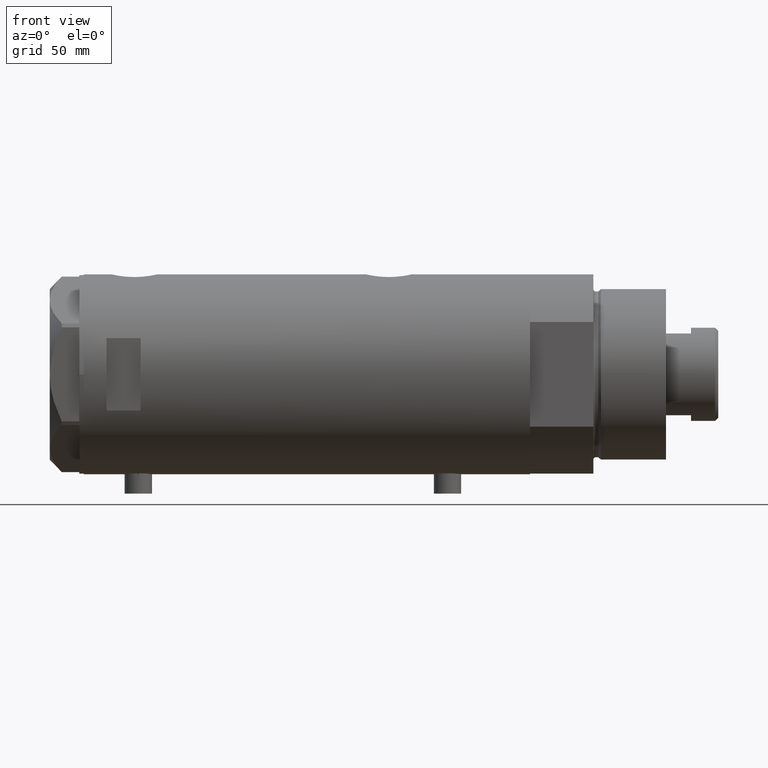
[diagram: clean part render]
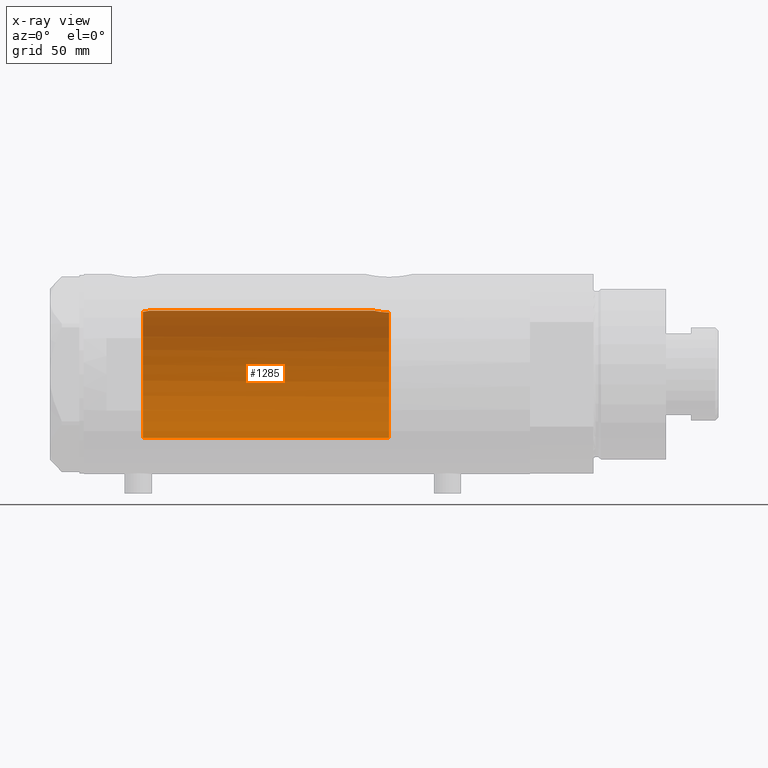
[diagram: x-ray — body ghosted, one internal face saturated and labeled with its STEP entity id]
A machine part, front view, then the same camera in x-ray: the body is ghosted and one INTERNAL B-rep face — a face not visible from any outside direction — is saturated and labeled: STEP entity #1285.
In plain terms, the highlighted cylindrical surface (partial cylindrical patch) has radius 28 mm, axis along (1, 0, -0).
Its self-contained STEP definition (entity closure, byte-faithful):
#28 = CIRCLE ( 'NONE', #916, 28.00000000000000000 ) ;
#29 = CARTESIAN_POINT ( 'NONE',  ( -28.00000000000000000, 0.000000000000000000, 72.20000000000001705 ) ) ;
#225 = ORIENTED_EDGE ( 'NONE', *, *, #4352, .F. ) ;
#237 = CARTESIAN_POINT ( 'NONE',  ( 27.55311958554909424, 4.984468698502475981, -31.79897075987406296 ) ) ;
#340 = VECTOR ( 'NONE', #2599, 1000.000000000000000 ) ;
#368 = EDGE_CURVE ( 'NONE', #3814, #4515, #3677, .T. ) ;
#536 = EDGE_CURVE ( 'NONE', #4529, #545, #28, .T. ) ;
#537 = CARTESIAN_POINT ( 'NONE',  ( 27.46622653369042411, 5.441176343402230664, 72.20000000000001705 ) ) ;
#545 = VERTEX_POINT ( 'NONE', #2009 ) ;
#579 = VERTEX_POINT ( 'NONE', #29 ) ;
#599 = ORIENTED_EDGE ( 'NONE', *, *, #368, .F. ) ;
#605 = CARTESIAN_POINT ( 'NONE',  ( 0.000000000000000000, 0.000000000000000000, -36.20000000000000995 ) ) ;
#621 = CARTESIAN_POINT ( 'NONE',  ( 27.94984428957576128, 1.729919005741101357, -29.73624844305086512 ) ) ;
#693 = CARTESIAN_POINT ( 'NONE',  ( 27.87926027245440608, 2.609415915507860895, 69.85365920364245085 ) ) ;
#772 = CARTESIAN_POINT ( 'NONE',  ( 27.59012538417911031, 4.776664836238046163, 71.36675298569846859 ) ) ;
#830 = DIRECTION ( 'NONE',  ( 1.000000000000000000, 0.000000000000000000, 0.000000000000000000 ) ) ;
#916 = AXIS2_PLACEMENT_3D ( 'NONE', #605, #1711, #3789 ) ;
#974 = CARTESIAN_POINT ( 'NONE',  ( 28.00000000000000000, 8.058211040487717449E-16, -29.52000000000000313 ) ) ;
#1013 = CARTESIAN_POINT ( 'NONE',  ( 27.36295003163000672, 5.941130795499232065, -33.23794896005177435 ) ) ;
#1116 = LINE ( 'NONE', #3151, #2992 ) ;
#1195 = EDGE_LOOP ( 'NONE', ( #225, #599, #3533, #2301, #4174, #3521 ) ) ;
#1197 = CARTESIAN_POINT ( 'NONE',  ( 27.85549123290575579, 2.850830541327404877, 69.96370468682907529 ) ) ;
#1267 = CARTESIAN_POINT ( 'NONE',  ( 27.98989376185446432, 0.8673308354119273478, -29.56259295538816545 ) ) ;
#1285 = ADVANCED_FACE ( 'NONE', ( #3585 ), #3237, .F. ) ;
#1334 = CARTESIAN_POINT ( 'NONE',  ( 28.00000000000000000, 0.000000000000000000, 69.32000000000000739 ) ) ;
#1357 = CARTESIAN_POINT ( 'NONE',  ( 27.70785054350542964, 4.050475470458777316, -30.89631279652927276 ) ) ;
#1463 = CARTESIAN_POINT ( 'NONE',  ( 28.00000000000000000, 0.000000000000000000, 69.32000000000000739 ) ) ;
#1495 = CARTESIAN_POINT ( 'NONE',  ( 0.000000000000000000, 0.000000000000000000, 72.20000000000001705 ) ) ;
#1641 = CARTESIAN_POINT ( 'NONE',  ( 27.50226589723266102, 5.257822516958276182, -32.13779315141981385 ) ) ;
#1665 = CARTESIAN_POINT ( 'NONE',  ( 27.52730847012277948, 5.126288527110444804, 71.76623399461912811 ) ) ;
#1683 = CARTESIAN_POINT ( 'NONE',  ( 27.77951318121831292, 3.511620812961478766, -30.53115835401436584 ) ) ;
#1711 = DIRECTION ( 'NONE',  ( 0.000000000000000000, 0.000000000000000000, -1.000000000000000000 ) ) ;
#1724 = CARTESIAN_POINT ( 'NONE',  ( 27.21712162367727927, 6.574850051620749092, -35.76016190408788731 ) ) ;
#1911 = B_SPLINE_CURVE_WITH_KNOTS ( 'NONE', 3,
 ( #974, #2369, #1267, #621, #3093, #4492, #3013, #2026, #1683, #1357, #3375, #2327, #237, #1641, #2757, #4160, #1013, #3033, #4434, #4180, #2122, #1724, #3480, #3118 ),
 .UNSPECIFIED., .F., .F.,
 ( 4, 2, 2, 2, 2, 2, 2, 2, 2, 2, 2, 4 ),
 ( 0.02064447638625019690, 0.02194711032043805340, 0.02324974425462590644, 0.02390106122171983469, 0.02455237818881376294, 0.02585501212300162291, 0.02650632909009555116, 0.02715764605718948288, 0.02846027999137732550, 0.02976291392556516466, 0.03041423089265908597, 0.03106554785975300728 ),
 .UNSPECIFIED. ) ;
#1953 = CIRCLE ( 'NONE', #3473, 28.00000000000000000 ) ;
#1958 = EDGE_CURVE ( 'NONE', #3814, #579, #1953, .T. ) ;
#2009 = CARTESIAN_POINT ( 'NONE',  ( 27.21605408577812568, 6.579240077698946365, -36.20000000000000995 ) ) ;
#2026 = CARTESIAN_POINT ( 'NONE',  ( 27.80267334785860101, 3.323944738624912798, -30.41709962017577951 ) ) ;
#2122 = CARTESIAN_POINT ( 'NONE',  ( 27.22604017942136423, 6.537820648187911310, -35.32472952793341392 ) ) ;
#2176 = CARTESIAN_POINT ( 'NONE',  ( 27.98435453724556510, 1.072101232728050579, 69.38566097371688102 ) ) ;
#2301 = ORIENTED_EDGE ( 'NONE', *, *, #3244, .T. ) ;
#2327 = CARTESIAN_POINT ( 'NONE',  ( 27.57921322802619457, 4.838471943606465153, -31.63541026849052429 ) ) ;
#2369 = CARTESIAN_POINT ( 'NONE',  ( 28.00000000000000355, 0.4344375524774767294, -29.51999999999999957 ) ) ;
#2437 = CARTESIAN_POINT ( 'NONE',  ( 27.62184089756353700, 4.590621453796800644, 71.17847296394721468 ) ) ;
#2505 = CARTESIAN_POINT ( 'NONE',  ( 0.000000000000000000, 0.000000000000000000, 98.20000000000000284 ) ) ;
#2513 = DIRECTION ( 'NONE',  ( -0.000000000000000000, -0.000000000000000000, -1.000000000000000000 ) ) ;
#2599 = DIRECTION ( 'NONE',  ( -0.000000000000000000, -0.000000000000000000, -1.000000000000000000 ) ) ;
#2606 = AXIS2_PLACEMENT_3D ( 'NONE', #2505, #4227, #3528 ) ;
#2757 = CARTESIAN_POINT ( 'NONE',  ( 27.47751794615729537, 5.385218554237049204, -32.31285718566402210 ) ) ;
#2907 = CARTESIAN_POINT ( 'NONE',  ( -28.00000000000000000, 0.000000000000000000, 98.20000000000000284 ) ) ;
#2992 = VECTOR ( 'NONE', #2513, 1000.000000000000000 ) ;
#3013 = CARTESIAN_POINT ( 'NONE',  ( 27.84585502960274184, 2.940342086136633171, -30.20946914370765768 ) ) ;
#3033 = CARTESIAN_POINT ( 'NONE',  ( 27.28989504668421517, 6.268149480003700091, -34.05093353430704184 ) ) ;
#3051 = CARTESIAN_POINT ( 'NONE',  ( -28.00000000000000000, 0.000000000000000000, -36.20000000000000995 ) ) ;
#3089 = VERTEX_POINT ( 'NONE', #4135 ) ;
#3093 = CARTESIAN_POINT ( 'NONE',  ( 27.92057377942991891, 2.145335874642057217, -29.86449057456583489 ) ) ;
#3118 = CARTESIAN_POINT ( 'NONE',  ( 27.21605408577812568, 6.579240077698946365, -36.20000000000000995 ) ) ;
#3134 = EDGE_CURVE ( 'NONE', #3089, #545, #1911, .T. ) ;
#3151 = CARTESIAN_POINT ( 'NONE',  ( 28.00000000000000000, 3.429011037612589276E-15, 98.20000000000000284 ) ) ;
#3191 = CARTESIAN_POINT ( 'NONE',  ( 27.93969014165221765, 1.855286977351521704, 69.58124112405666040 ) ) ;
#3237 = CYLINDRICAL_SURFACE ( 'NONE', #2606, 28.00000000000000000 ) ;
#3244 = EDGE_CURVE ( 'NONE', #579, #4529, #3607, .T. ) ;
#3375 = CARTESIAN_POINT ( 'NONE',  ( 27.65669575048418238, 4.382057994727794004, -31.17233761202032838 ) ) ;
#3473 = AXIS2_PLACEMENT_3D ( 'NONE', #1495, #3961, #830 ) ;
#3480 = CARTESIAN_POINT ( 'NONE',  ( 27.21525044627862755, 6.582564457995944807, -35.98128103916471332 ) ) ;
#3483 = CARTESIAN_POINT ( 'NONE',  ( 27.92131942247208798, 2.112374604004425116, 69.66259974202708349 ) ) ;
#3521 = ORIENTED_EDGE ( 'NONE', *, *, #3134, .F. ) ;
#3528 = DIRECTION ( 'NONE',  ( -1.000000000000000000, 0.000000000000000000, 0.000000000000000000 ) ) ;
#3533 = ORIENTED_EDGE ( 'NONE', *, *, #1958, .T. ) ;
#3562 = CARTESIAN_POINT ( 'NONE',  ( 28.00000000000000355, 0.5407212781083803321, 69.32000000000003581 ) ) ;
#3585 = FACE_OUTER_BOUND ( 'NONE', #1195, .T. ) ;
#3607 = LINE ( 'NONE', #2907, #340 ) ;
#3677 = B_SPLINE_CURVE_WITH_KNOTS ( 'NONE', 3,
 ( #537, #3736, #1665, #772, #2437, #3906, #4551, #1197, #693, #3483, #3191, #2176, #3562, #1463 ),
 .UNSPECIFIED., .F., .F.,
 ( 4, 2, 2, 2, 2, 2, 4 ),
 ( 0.03488855882532450325, 0.03568791961119571754, 0.03648728039706693183, 0.03808600196880933264, 0.03888536275468051917, 0.03968472354055171264, 0.04128344511229409958 ),
 .UNSPECIFIED. ) ;
#3735 = CARTESIAN_POINT ( 'NONE',  ( 27.46622653369042411, 5.441176343402230664, 72.20000000000001705 ) ) ;
#3736 = CARTESIAN_POINT ( 'NONE',  ( 27.49602064413222635, 5.290780227724656726, 71.97882924682045314 ) ) ;
#3789 = DIRECTION ( 'NONE',  ( -1.000000000000000000, 0.000000000000000000, 0.000000000000000000 ) ) ;
#3814 = VERTEX_POINT ( 'NONE', #3735 ) ;
#3906 = CARTESIAN_POINT ( 'NONE',  ( 27.71586615897684780, 3.998795151939225523, 70.64767395625744939 ) ) ;
#3961 = DIRECTION ( 'NONE',  ( 0.000000000000000000, 0.000000000000000000, 1.000000000000000000 ) ) ;
#4135 = CARTESIAN_POINT ( 'NONE',  ( 28.00000000000000000, 8.058211040487717449E-16, -29.52000000000000313 ) ) ;
#4160 = CARTESIAN_POINT ( 'NONE',  ( 27.40633791352276560, 5.740289853568799394, -32.85469713442370221 ) ) ;
#4174 = ORIENTED_EDGE ( 'NONE', *, *, #536, .T. ) ;
#4180 = CARTESIAN_POINT ( 'NONE',  ( 27.23306259439848276, 6.508606919525674606, -35.10931986330979271 ) ) ;
#4227 = DIRECTION ( 'NONE',  ( -0.000000000000000000, -0.000000000000000000, -1.000000000000000000 ) ) ;
#4352 = EDGE_CURVE ( 'NONE', #4515, #3089, #1116, .T. ) ;
#4434 = CARTESIAN_POINT ( 'NONE',  ( 27.26132124301009441, 6.389601967157239493, -34.46983701249831711 ) ) ;
#4492 = CARTESIAN_POINT ( 'NONE',  ( 27.86588799758910895, 2.744542339393448493, -30.11578757899564351 ) ) ;
#4515 = VERTEX_POINT ( 'NONE', #1334 ) ;
#4529 = VERTEX_POINT ( 'NONE', #3051 ) ;
#4551 = CARTESIAN_POINT ( 'NONE',  ( 27.77752716845531822, 3.554080867558359280, 70.33702809021863800 ) ) ;